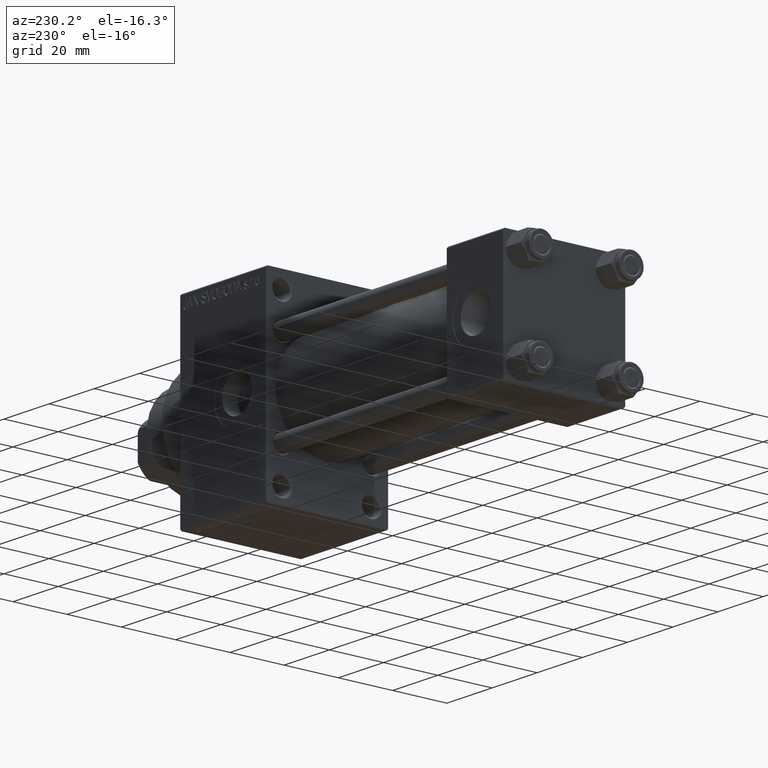
[diagram: clean part render]
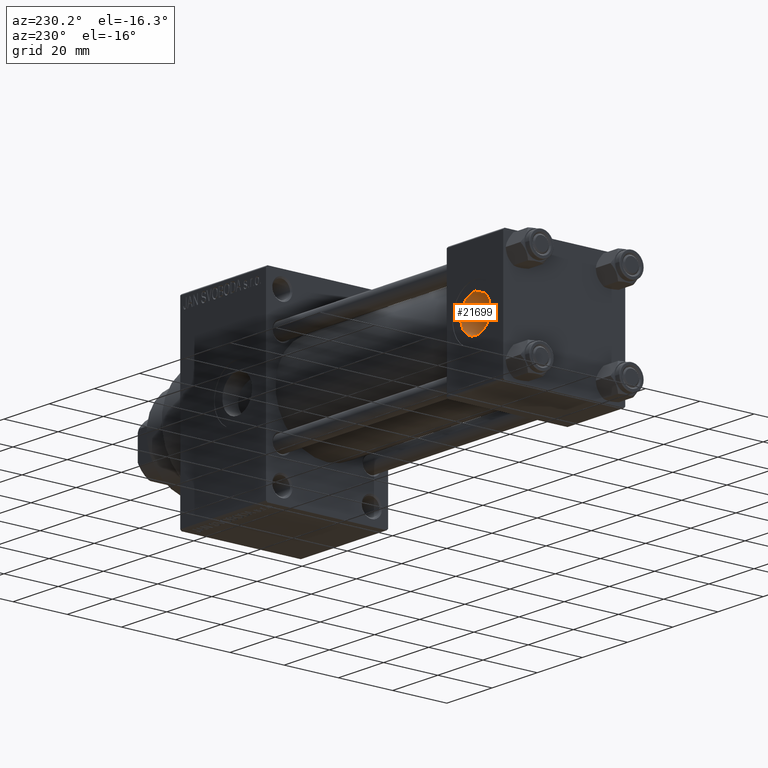
[diagram: same view with one face highlighted and labeled with its STEP entity id]
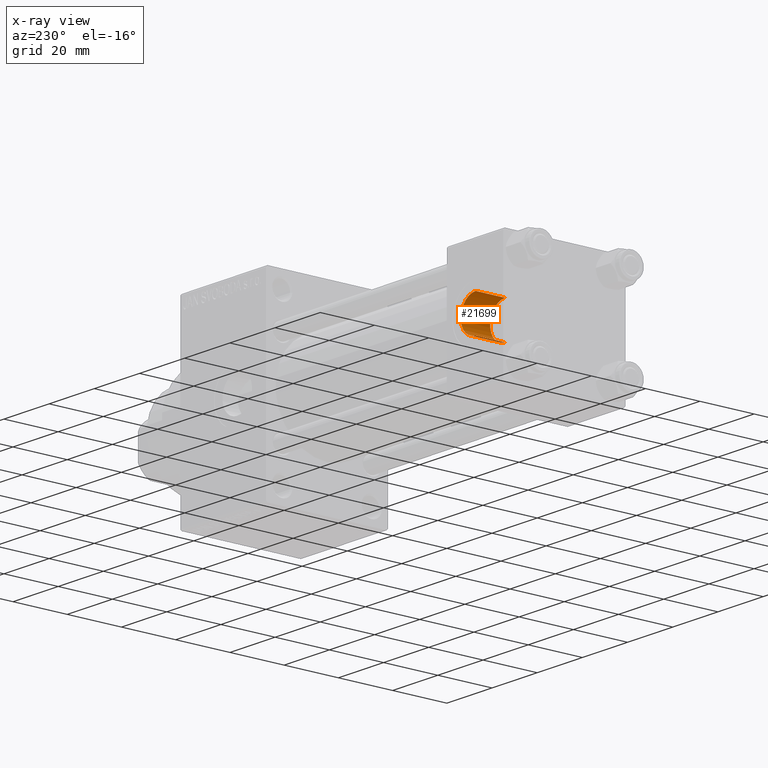
[diagram: x-ray of the same camera — body ghosted, the highlighted face saturated]
A machine part, auxiliary view. The second image highlights one B-rep face of the part: STEP entity #21699.
The next image is the same camera in x-ray: the body ghosted, the highlighted face saturated — about 0% of this face is hidden behind the body in this view.
In plain terms, the highlighted cylindrical surface (edge-blend (fillet) strip) has radius 6.58 mm, axis along (0, 1, 0).
Its self-contained STEP definition (entity closure, byte-faithful):
#2456 = DIRECTION ( 'NONE',  ( 0.000000000000000000, 0.000000000000000000, 1.000000000000000000 ) ) ;
#4536 = VERTEX_POINT ( 'NONE', #8395 ) ;
#5554 = VERTEX_POINT ( 'NONE', #21160 ) ;
#6940 = EDGE_CURVE ( 'NONE', #4536, #47680, #30496, .T. ) ;
#7248 = DIRECTION ( 'NONE',  ( 0.000000000000000000, 1.000000000000000000, 0.000000000000000000 ) ) ;
#7665 = VECTOR ( 'NONE', #35369, 1000.000000000000000 ) ;
#7892 = CARTESIAN_POINT ( 'NONE',  ( 12.50000000000000000, 11.50000000000000000, 0.000000000000000000 ) ) ;
#8395 = CARTESIAN_POINT ( 'NONE',  ( 12.50000000000000000, 11.43999999999999773, -6.579999999999998295 ) ) ;
#9880 = CARTESIAN_POINT ( 'NONE',  ( 12.50000000000000000, 11.43999999999999773, 0.000000000000000000 ) ) ;
#10609 = ORIENTED_EDGE ( 'NONE', *, *, #39077, .T. ) ;
#11400 = EDGE_CURVE ( 'NONE', #41459, #5554, #11622, .T. ) ;
#11622 = CIRCLE ( 'NONE', #39359, 6.579999999999998295 ) ;
#13551 = VECTOR ( 'NONE', #27019, 1000.000000000000000 ) ;
#17429 = AXIS2_PLACEMENT_3D ( 'NONE', #7892, #27495, #42641 ) ;
#18198 = ORIENTED_EDGE ( 'NONE', *, *, #28379, .F. ) ;
#19246 = LINE ( 'NONE', #39097, #7665 ) ;
#19546 = CYLINDRICAL_SURFACE ( 'NONE', #17429, 6.579999999999998295 ) ;
#21160 = CARTESIAN_POINT ( 'NONE',  ( 12.50000000000000000, 22.30000000000000071, -6.579999999999998295 ) ) ;
#21699 = ADVANCED_FACE ( 'NONE', ( #30468 ), #19546, .F. ) ;
#25022 = DIRECTION ( 'NONE',  ( -0.000000000000000000, -1.000000000000000000, -0.000000000000000000 ) ) ;
#25701 = ORIENTED_EDGE ( 'NONE', *, *, #11400, .T. ) ;
#27019 = DIRECTION ( 'NONE',  ( -0.000000000000000000, 1.000000000000000000, -0.000000000000000000 ) ) ;
#27495 = DIRECTION ( 'NONE',  ( -0.000000000000000000, 1.000000000000000000, -0.000000000000000000 ) ) ;
#28379 = EDGE_CURVE ( 'NONE', #4536, #5554, #37667, .T. ) ;
#30235 = CARTESIAN_POINT ( 'NONE',  ( 12.50000000000000000, 11.50000000000000000, -6.579999999999998295 ) ) ;
#30468 = FACE_OUTER_BOUND ( 'NONE', #38949, .T. ) ;
#30496 = CIRCLE ( 'NONE', #36067, 6.579999999999998295 ) ;
#35369 = DIRECTION ( 'NONE',  ( -0.000000000000000000, 1.000000000000000000, -0.000000000000000000 ) ) ;
#36067 = AXIS2_PLACEMENT_3D ( 'NONE', #9880, #25022, #2456 ) ;
#37310 = CARTESIAN_POINT ( 'NONE',  ( 12.50000000000000000, 11.43999999999999773, 6.579999999999998295 ) ) ;
#37667 = LINE ( 'NONE', #30235, #13551 ) ;
#38949 = EDGE_LOOP ( 'NONE', ( #18198, #47194, #10609, #25701 ) ) ;
#39044 = CARTESIAN_POINT ( 'NONE',  ( 12.50000000000000000, 22.30000000000000071, 6.579999999999998295 ) ) ;
#39077 = EDGE_CURVE ( 'NONE', #47680, #41459, #19246, .T. ) ;
#39097 = CARTESIAN_POINT ( 'NONE',  ( 12.50000000000000000, 11.50000000000000000, 6.579999999999998295 ) ) ;
#39359 = AXIS2_PLACEMENT_3D ( 'NONE', #44951, #7248, #48439 ) ;
#41459 = VERTEX_POINT ( 'NONE', #39044 ) ;
#42641 = DIRECTION ( 'NONE',  ( 0.000000000000000000, 0.000000000000000000, 1.000000000000000000 ) ) ;
#44951 = CARTESIAN_POINT ( 'NONE',  ( 12.50000000000000000, 22.30000000000000071, 0.000000000000000000 ) ) ;
#47194 = ORIENTED_EDGE ( 'NONE', *, *, #6940, .T. ) ;
#47680 = VERTEX_POINT ( 'NONE', #37310 ) ;
#48439 = DIRECTION ( 'NONE',  ( 0.000000000000000000, 0.000000000000000000, 1.000000000000000000 ) ) ;